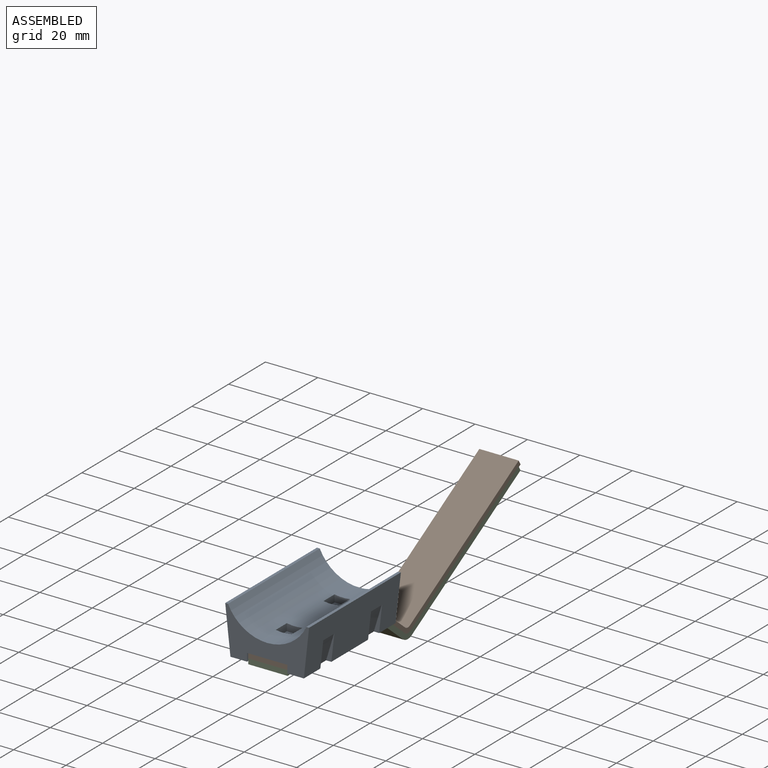
[diagram: assembled view]
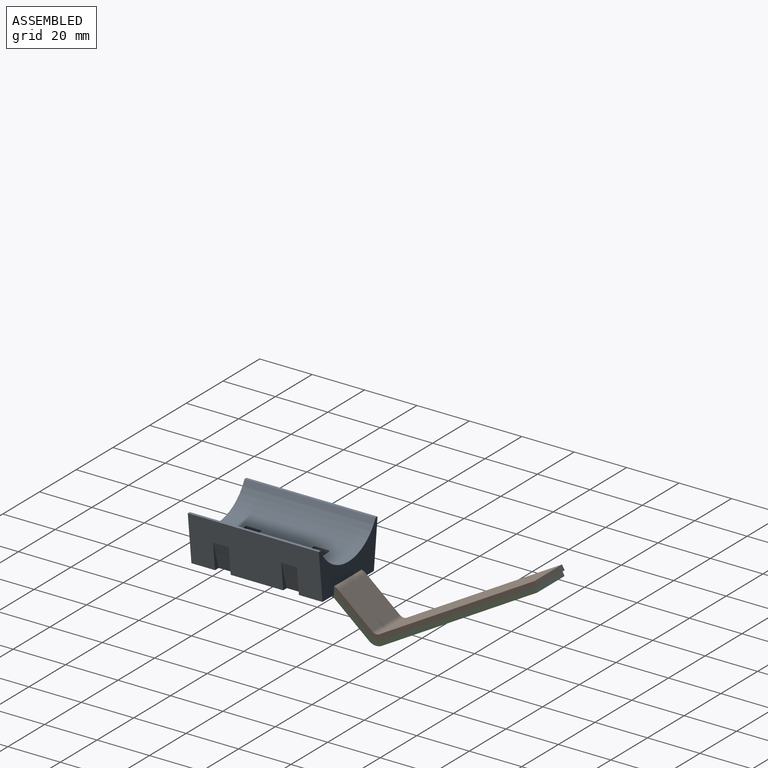
[diagram: assembled view, second angle]
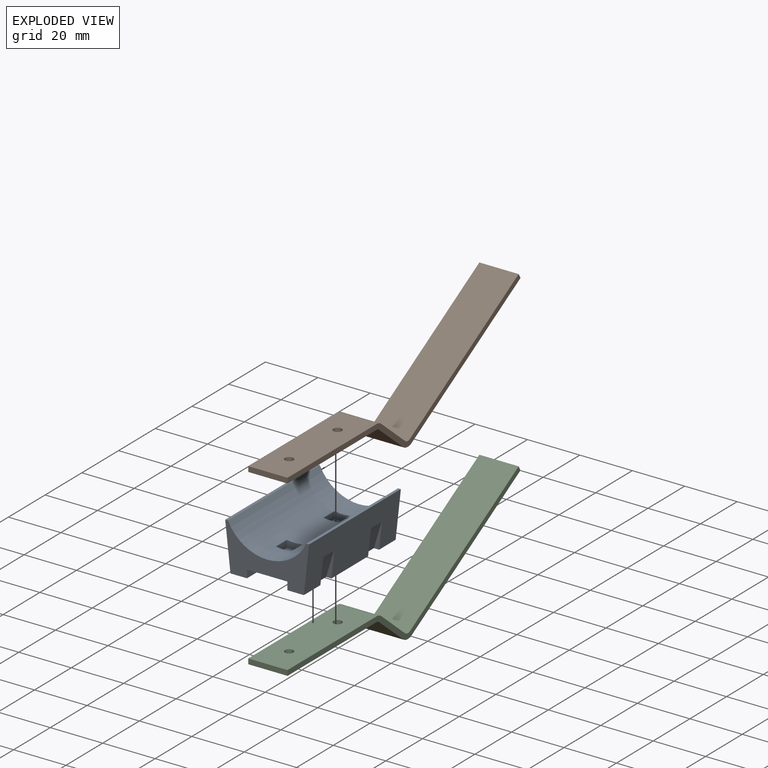
[diagram: exploded view]
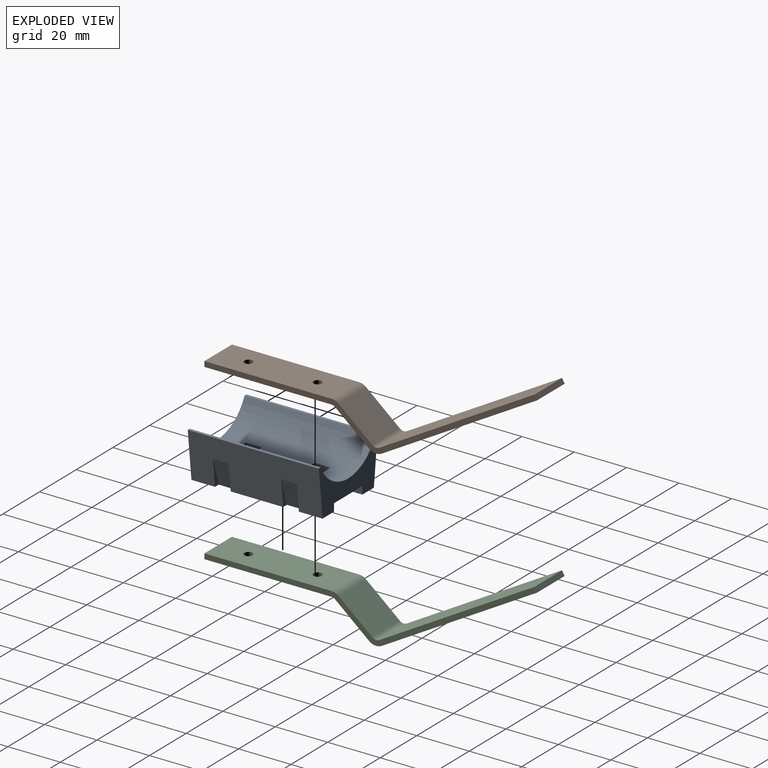
[diagram: exploded view, second angle]
ASSEMBLY  parts=3 mates=3
PART A: 40 faces, bbox 32x50x18 mm
  f0: plane 10x3.11mm, normal (0,1,0), area 10.6mm2, adj f2,f3,f37,f39
  f1: plane 10x3.11mm, normal (0,-1,0), area 10.6mm2, adj f2,f3,f37,f39
  f2: plane 6x0.11mm, normal (0,0,-1), area 0.7mm2, adj f0,f1,f37,f39
  f3: plane 50x6.3mm, normal (0,0,-1), area 291mm2, adj f0,f1,f10,f11,f15,f34,f35,f37
  f4: plane 10x3.11mm, normal (0,1,0), area 10.6mm2, adj f6,f14,f31,f32
  f5: plane 10x3.11mm, normal (0,-1,0), area 10.6mm2, adj f6,f14,f31,f32
  f6: plane 6x0.11mm, normal (0,0,-1), area 0.7mm2, adj f4,f5,f31,f32
  f7: cylinder r=16.5mm len=50mm, axis (0,-1,0), area 1796.5mm2, adj f10,f11,f12,f13,f18,f19,f20,f21
  f8: cylinder r=1.6mm len=3.2mm, axis (0,0,-1), area 30.2mm2, adj f17,f27
  f9: cylinder r=1.6mm len=3.2mm, axis (0,0,-1), area 30.2mm2, adj f17,f22
  f10: plane 32x18mm, normal (0,1,0), area 290mm2, adj f3,f7,f12,f13,f14,f15,f16,f17
  f11: plane 32x18mm, normal (0,-1,0), area 290mm2, adj f3,f7,f12,f13,f14,f15,f16,f17
  f12: plane 50x1.06mm, normal (0,0,1), area 52.9mm2, adj f7,f10,f11,f31
  f13: plane 50x1.06mm, normal (0,0,1), area 52.9mm2, adj f7,f10,f11,f37
  f14: plane 50x6.3mm, normal (0,0,-1), area 291mm2, adj f4,f5,f10,f11,f16,f28,f29,f31
  f15: plane 50x3mm, normal (1,0,0), area 150mm2, adj f3,f10,f11,f17
  f16: plane 50x3mm, normal (-1,0,0), area 150mm2, adj f10,f11,f14,f17
  f17: plane 50x15.4mm, normal (0,0,-1), area 753.9mm2, adj f8,f9,f10,f11,f15,f16
  f18: plane 6x2.78mm, normal (0,-1,0), area 15.5mm2, adj f7,f19,f21,f22
  f19: plane 6x2.78mm, normal (1,0,0), area 16.7mm2, adj f7,f18,f20,f22
  f20: plane 6x2.78mm, normal (0,1,0), area 15.5mm2, adj f7,f19,f21,f22
  f21: plane 6x2.78mm, normal (-1,0,0), area 16.7mm2, adj f7,f18,f20,f22
  f22: plane 6x6mm, normal (0,0,1), area 28mm2, adj f9,f18,f19,f20,f21
  f23: plane 6x2.78mm, normal (0,-1,0), area 15.5mm2, adj f7,f24,f26,f27
  f24: plane 6x2.78mm, normal (1,0,0), area 16.7mm2, adj f7,f23,f25,f27
  f25: plane 6x2.78mm, normal (0,1,0), area 15.5mm2, adj f7,f24,f26,f27
  f26: plane 6x2.78mm, normal (-1,0,0), area 16.7mm2, adj f7,f23,f25,f27
  f27: plane 6x6mm, normal (0,0,1), area 28mm2, adj f8,f23,f24,f25,f26
  f28: plane 10x3.11mm, normal (0,1,0), area 10.6mm2, adj f14,f30,f31,f33
  f29: plane 10x3.11mm, normal (0,-1,0), area 10.6mm2, adj f14,f30,f31,f33
  f30: plane 6x0.11mm, normal (0,0,-1), area 0.7mm2, adj f28,f29,f31,f33
  f31: plane 50x18mm, normal (0.99,0,-0.11), area 784.8mm2, adj f4,f5,f6,f10,f11,f12,f14,f28
  f32: plane 10x6mm, normal (0.96,0,-0.29), area 62.6mm2, adj f4,f5,f6,f14
  f33: plane 10x6mm, normal (0.96,0,-0.29), area 62.6mm2, adj f14,f28,f29,f30
  f34: plane 10x3.11mm, normal (0,1,0), area 10.6mm2, adj f3,f36,f37,f38
  f35: plane 10x3.11mm, normal (0,-1,0), area 10.6mm2, adj f3,f36,f37,f38
  f36: plane 6x0.11mm, normal (0,0,-1), area 0.7mm2, adj f34,f35,f37,f38
  f37: plane 50x18mm, normal (-0.99,0,-0.11), area 784.8mm2, adj f0,f1,f2,f3,f10,f11,f13,f34
  f38: plane 10x6mm, normal (-0.96,0,-0.29), area 62.6mm2, adj f3,f34,f35,f36
  f39: plane 10x6mm, normal (-0.96,0,-0.29), area 62.6mm2, adj f0,f1,f2,f3
PART B: 24 faces, bbox 15x126.9x36.5 mm
  f0: plane 48.44x2mm, normal (-1,0,0), area 96.9mm2, adj f4,f5,f6,f21
  f1: plane 48.44x2mm, normal (1,0,0), area 96.9mm2, adj f4,f5,f6,f20
  f2: cylinder r=1.6mm len=3.2mm, axis (0,0,-1), area 20.1mm2, adj f5,f6
  f3: cylinder r=1.6mm len=3.2mm, axis (0,0,-1), area 20.1mm2, adj f5,f6
  f4: plane 15x2mm, normal (0,-1,0), area 30mm2, adj f0,f1,f5,f6
  f5: plane 48.44x15mm, normal (0,0,-1), area 710.4mm2, adj f0,f1,f2,f3,f4,f23
  f6: plane 48.44x15mm, normal (0,0,1), area 710.4mm2, adj f0,f1,f2,f3,f4,f22
  f7: plane 14.17x12.35mm, normal (-1,0,0), area 33.6mm2, adj f9,f10,f17,f21
  f8: plane 14.17x12.35mm, normal (1,0,0), area 33.6mm2, adj f9,f10,f16,f20
  f9: plane 15x12.89mm, normal (0,-0.64,-0.77), area 252.4mm2, adj f7,f8,f18,f23
  f10: plane 15x12.89mm, normal (0,0.64,0.77), area 252.4mm2, adj f7,f8,f19,f22
  f11: plane 60.23x35.93mm, normal (-1,0,0), area 136.8mm2, adj f12,f14,f15,f17
  f12: plane 15x1.73mm, normal (0,0.87,0.5), area 30mm2, adj f11,f13,f14,f15
  f13: plane 60.23x35.93mm, normal (1,0,0), area 136.8mm2, adj f12,f14,f15,f16
  f14: plane 59.23x34.19mm, normal (0,0.5,-0.87), area 1025.8mm2, adj f11,f12,f13,f18
  f15: plane 59.23x34.19mm, normal (0,-0.5,0.87), area 1025.8mm2, adj f11,f12,f13,f19
  f16: plane 4.91x2.54mm, normal (1,0,0), area 8.1mm2, adj f8,f13,f18,f19
  f17: plane 4.91x2.54mm, normal (-1,0,0), area 8.1mm2, adj f7,f11,f18,f19
  f18: cylinder r=4.3mm len=15mm, axis (1,0,0), area 78.8mm2, adj f9,f14,f16,f17
  f19: cylinder r=2.3mm len=15mm, axis (1,0,0), area 42.1mm2, adj f10,f15,f16,f17
  f20: plane 2.76x2.54mm, normal (1,0,0), area 4.6mm2, adj f1,f8,f22,f23
  f21: plane 2.76x2.54mm, normal (-1,0,0), area 4.6mm2, adj f0,f7,f22,f23
  f22: cylinder r=4.3mm len=15mm, axis (1,0,0), area 45mm2, adj f6,f10,f20,f21
  f23: cylinder r=2.3mm len=15mm, axis (1,0,0), area 24.1mm2, adj f5,f9,f20,f21
PART C: same geometry as B
PLACE A t=(-10.96,-11.85,21.97)mm
PLACE B t=(-18.46,18.24,15.97)mm
PLACE C t=(-18.46,18.24,13.97)mm
MATE parallel C.f3 <-> B.f3  axis (0,0,-1) through (-10.96,26.54,11.97)mm
MATE parallel C.f3 <-> A.f8  axis (0,0,1) through (-10.96,26.54,13.97)mm
MATE parallel B.f2 <-> C.f2  axis (0,0,1) through (-10.96,0.14,15.97)mm
